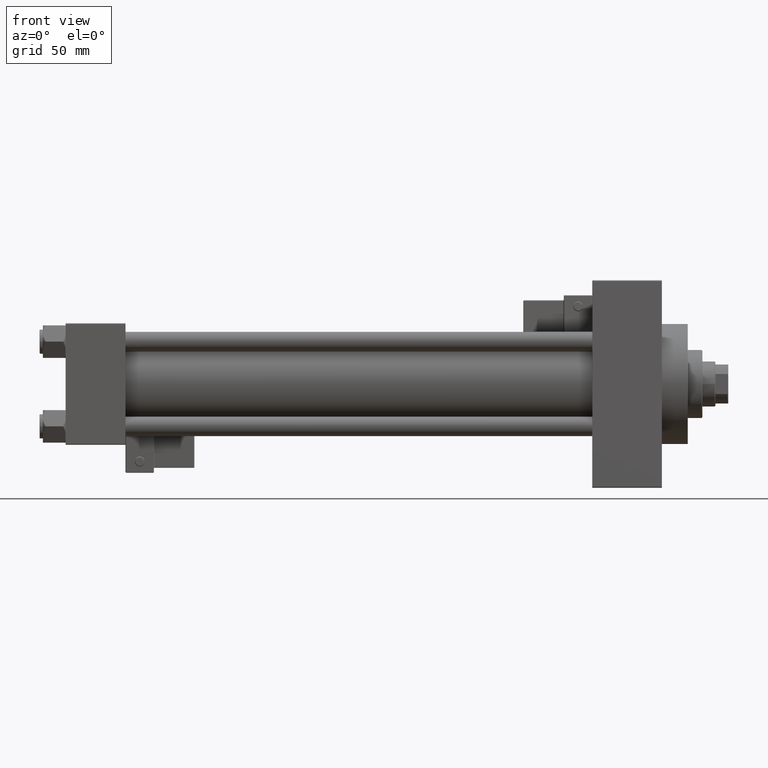
[diagram: clean part render]
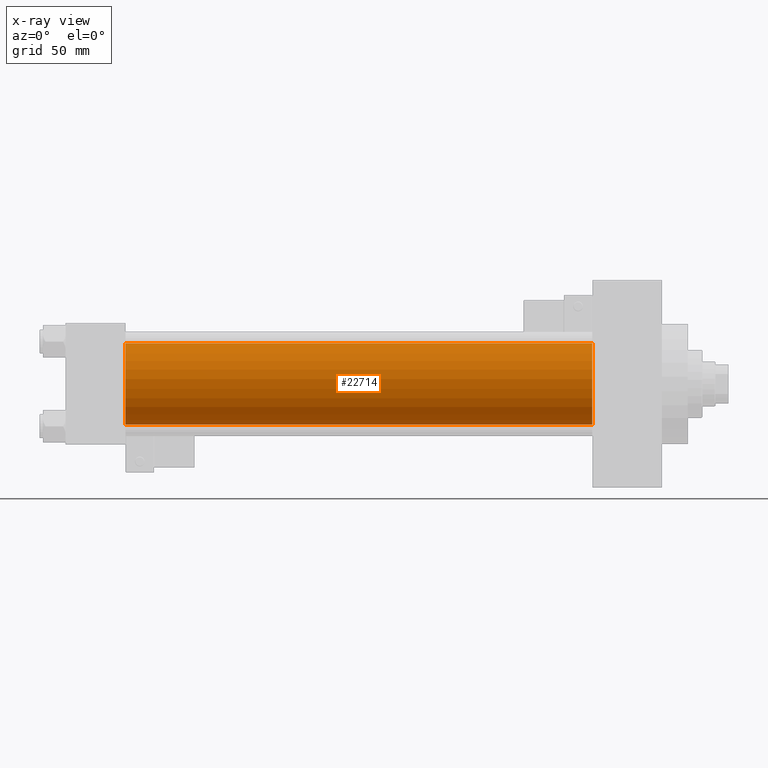
[diagram: x-ray — body ghosted, one internal face saturated and labeled with its STEP entity id]
A machine part, front view, then the same camera in x-ray: the body is ghosted and one INTERNAL B-rep face — a face not visible from any outside direction — is saturated and labeled: STEP entity #22714.
In plain terms, the highlighted cylindrical surface (partial cylindrical patch) has radius 25 mm, axis along (-1, -0, -0).
Its self-contained STEP definition (entity closure, byte-faithful):
#485 = CARTESIAN_POINT ( 'NONE',  ( 324.9999999999999432, 4.595317839031724996E-16, -25.00000000000000000 ) ) ;
#2006 = LINE ( 'NONE', #21554, #49676 ) ;
#2884 = DIRECTION ( 'NONE',  ( 0.000000000000000000, 0.000000000000000000, -1.000000000000000000 ) ) ;
#3247 = AXIS2_PLACEMENT_3D ( 'NONE', #16566, #17079, #48832 ) ;
#6791 = CARTESIAN_POINT ( 'NONE',  ( 37.00000000000000000, -2.602085213965210642E-15, 0.000000000000000000 ) ) ;
#6812 = FACE_OUTER_BOUND ( 'NONE', #15832, .T. ) ;
#8280 = VECTOR ( 'NONE', #31620, 1000.000000000000000 ) ;
#12758 = EDGE_CURVE ( 'NONE', #41824, #47924, #2006, .T. ) ;
#14128 = DIRECTION ( 'NONE',  ( -1.000000000000000000, -0.000000000000000000, -0.000000000000000000 ) ) ;
#14495 = ORIENTED_EDGE ( 'NONE', *, *, #15982, .T. ) ;
#15832 = EDGE_LOOP ( 'NONE', ( #14495, #19387, #35737, #30214 ) ) ;
#15932 = CARTESIAN_POINT ( 'NONE',  ( 324.9999999999999432, -2.602085213965210642E-15, 25.00000000000000000 ) ) ;
#15982 = EDGE_CURVE ( 'NONE', #48116, #41824, #36493, .T. ) ;
#16566 = CARTESIAN_POINT ( 'NONE',  ( 324.9999999999999432, -2.602085213965210642E-15, 0.000000000000000000 ) ) ;
#17079 = DIRECTION ( 'NONE',  ( 1.000000000000000000, 0.000000000000000000, 0.000000000000000000 ) ) ;
#19387 = ORIENTED_EDGE ( 'NONE', *, *, #12758, .T. ) ;
#19524 = AXIS2_PLACEMENT_3D ( 'NONE', #22707, #14128, #42232 ) ;
#21554 = CARTESIAN_POINT ( 'NONE',  ( 324.9999999999999432, 4.595317839031724996E-16, -25.00000000000000000 ) ) ;
#22183 = DIRECTION ( 'NONE',  ( 1.000000000000000000, 0.000000000000000000, 0.000000000000000000 ) ) ;
#22707 = CARTESIAN_POINT ( 'NONE',  ( 324.9999999999999432, -2.602085213965210642E-15, 0.000000000000000000 ) ) ;
#22714 = ADVANCED_FACE ( 'NONE', ( #6812 ), #26365, .F. ) ;
#23809 = CARTESIAN_POINT ( 'NONE',  ( 324.9999999999999432, -2.602085213965210642E-15, 25.00000000000000000 ) ) ;
#25400 = CIRCLE ( 'NONE', #42007, 25.00000000000000000 ) ;
#26365 = CYLINDRICAL_SURFACE ( 'NONE', #19524, 25.00000000000000000 ) ;
#28236 = EDGE_CURVE ( 'NONE', #45468, #47924, #25400, .T. ) ;
#28949 = CARTESIAN_POINT ( 'NONE',  ( 37.00000000000000000, -2.602085213965210642E-15, 25.00000000000000000 ) ) ;
#30214 = ORIENTED_EDGE ( 'NONE', *, *, #37679, .F. ) ;
#30860 = LINE ( 'NONE', #23809, #8280 ) ;
#31620 = DIRECTION ( 'NONE',  ( -1.000000000000000000, -0.000000000000000000, -0.000000000000000000 ) ) ;
#35737 = ORIENTED_EDGE ( 'NONE', *, *, #28236, .F. ) ;
#36493 = CIRCLE ( 'NONE', #3247, 25.00000000000000000 ) ;
#37679 = EDGE_CURVE ( 'NONE', #48116, #45468, #30860, .T. ) ;
#41824 = VERTEX_POINT ( 'NONE', #485 ) ;
#42007 = AXIS2_PLACEMENT_3D ( 'NONE', #6791, #22183, #2884 ) ;
#42134 = CARTESIAN_POINT ( 'NONE',  ( 37.00000000000000000, 4.595317839031724996E-16, -25.00000000000000000 ) ) ;
#42232 = DIRECTION ( 'NONE',  ( 0.000000000000000000, 0.000000000000000000, 1.000000000000000000 ) ) ;
#45468 = VERTEX_POINT ( 'NONE', #28949 ) ;
#47924 = VERTEX_POINT ( 'NONE', #42134 ) ;
#48116 = VERTEX_POINT ( 'NONE', #15932 ) ;
#48832 = DIRECTION ( 'NONE',  ( 0.000000000000000000, 0.000000000000000000, -1.000000000000000000 ) ) ;
#49676 = VECTOR ( 'NONE', #49920, 1000.000000000000000 ) ;
#49920 = DIRECTION ( 'NONE',  ( -1.000000000000000000, -0.000000000000000000, -0.000000000000000000 ) ) ;